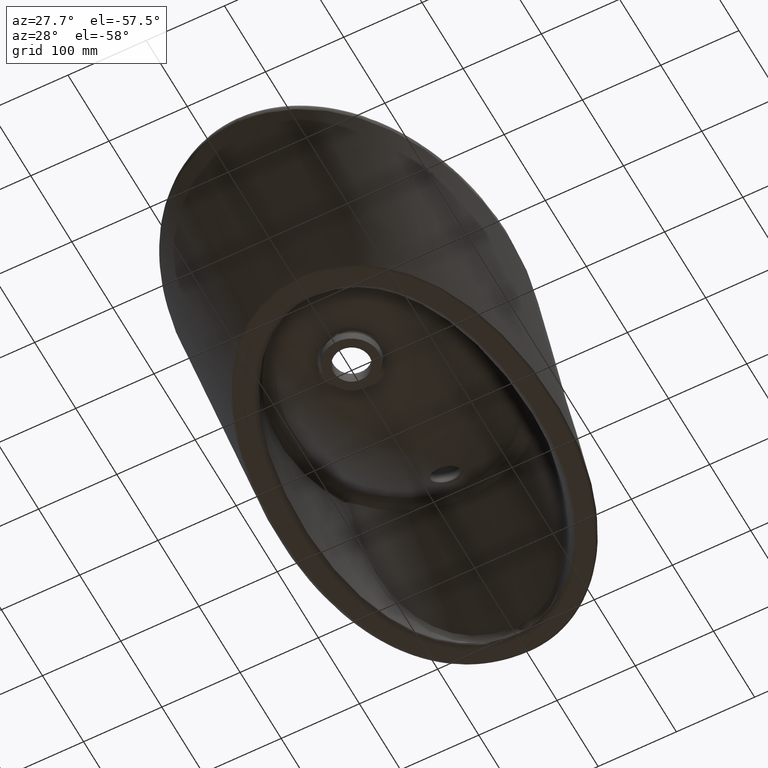
[diagram: clean part render]
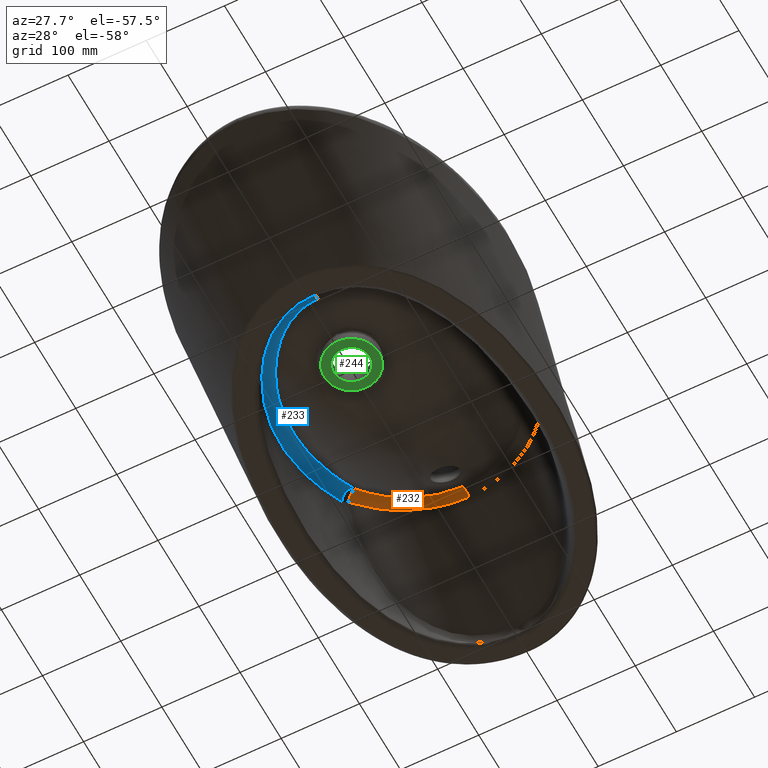
[diagram: same view with three faces highlighted in distinct colors, each labeled with its STEP entity id]
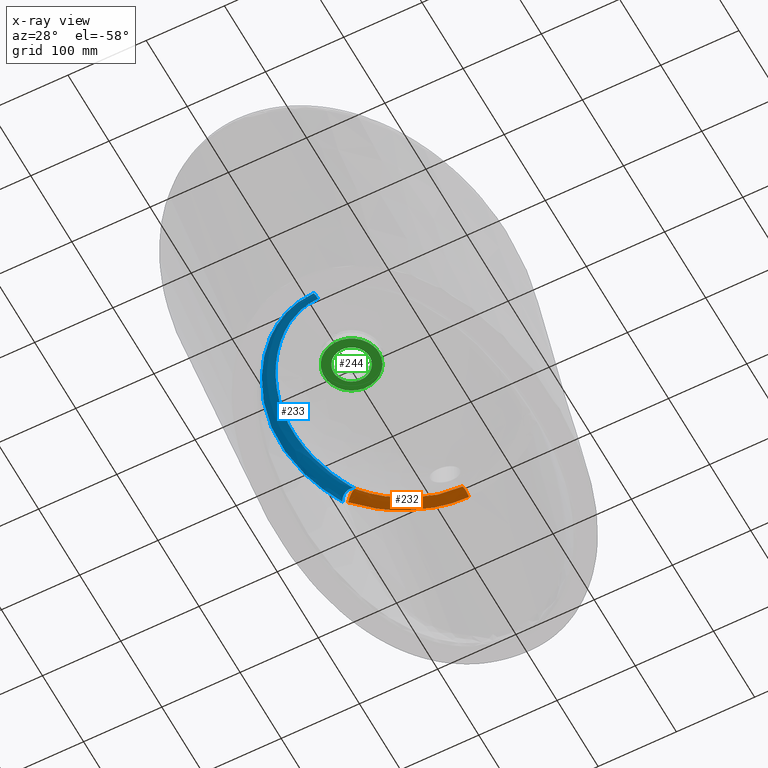
[diagram: x-ray of the same camera — body ghosted, the three highlighted faces saturated]
A machine part, auxiliary view with three faces highlighted in distinct colors.
The next image is the same camera in x-ray (body ghosted, the three faces saturated) — at least one of them is partly hidden behind the body in this view.
Their STEP definitions:

[orange] entity #232 — the highlighted face is a freeform B-spline surface patch.
#130=(
BOUNDED_SURFACE()
B_SPLINE_SURFACE(3,2,((#15686,#15687,#15688),(#15689,#15690,#15691),(#15692,
#15693,#15694),(#15695,#15696,#15697),(#15698,#15699,#15700),(#15701,#15702,
#15703),(#15704,#15705,#15706),(#15707,#15708,#15709),(#15710,#15711,#15712),
(#15713,#15714,#15715),(#15716,#15717,#15718),(#15719,#15720,#15721),(#15722,
#15723,#15724),(#15725,#15726,#15727),(#15728,#15729,#15730),(#15731,#15732,
#15733)),.UNSPECIFIED.,.F.,.F.,.F.)
B_SPLINE_SURFACE_WITH_KNOTS((4,2,2,2,2,2,2,4),(3,3),(0.,0.25,0.375,0.4375,
0.5,0.625,0.75,1.),(0.,1.),.UNSPECIFIED.)
GEOMETRIC_REPRESENTATION_ITEM()
RATIONAL_B_SPLINE_SURFACE(((1.,0.632108000459899,1.),(1.,0.659570025203263,
1.),(1.,0.679124628611072,1.),(1.,0.704777845493947,1.),(1.,0.712342504019266,
1.),(1.,0.721900788243359,1.),(1.,0.724736636659717,1.),(1.,0.730015489518685,
1.),(1.,0.73199991033058,1.),(1.,0.738446627321426,1.),(1.,0.742392668552308,
1.),(1.,0.749683936567246,1.),(1.,0.753047126587379,1.),(1.,0.761457696404205,
1.),(1.,0.764394044295747,1.),(1.,0.764326696199745,1.)))
REPRESENTATION_ITEM('')
SURFACE()
);
#167=FACE_OUTER_BOUND('',#412,.T.);
#232=ADVANCED_FACE('',(#167),#130,.T.);
#258=B_SPLINE_CURVE_WITH_KNOTS('',3,(#1029,#1030,#1031,#1032,#1033,#1034,
#1035,#1036,#1037,#1038,#1039,#1040,#1041,#1042),.UNSPECIFIED.,.F.,.F.,
(4,2,2,2,2,2,4),(0.,0.25,0.375,0.5,0.625,0.75,1.),.UNSPECIFIED.);
#325=B_SPLINE_CURVE_WITH_KNOTS('',3,(#15440,#15441,#15442,#15443,#15444,
#15445),.UNSPECIFIED.,.F.,.F.,(4,2,4),(0.,0.5,1.),.UNSPECIFIED.);
#329=B_SPLINE_CURVE_WITH_KNOTS('',3,(#15674,#15675,#15676,#15677,#15678,
#15679,#15680,#15681,#15682,#15683,#15684,#15685),.UNSPECIFIED.,.F.,.F.,
(4,2,2,2,2,4),(0.,0.25,0.5,0.625,0.75,1.),.UNSPECIFIED.);
#412=EDGE_LOOP('',(#593,#594,#595,#596));
#593=ORIENTED_EDGE('',*,*,#802,.F.);
#594=ORIENTED_EDGE('',*,*,#803,.T.);
#595=ORIENTED_EDGE('',*,*,#798,.T.);
#596=ORIENTED_EDGE('',*,*,#721,.T.);
#655=VERTEX_POINT('',#1028);
#656=VERTEX_POINT('',#1043);
#703=VERTEX_POINT('',#15446);
#705=VERTEX_POINT('',#15673);
#721=EDGE_CURVE('',#656,#655,#258,.T.);
#798=EDGE_CURVE('',#703,#656,#325,.T.);
#802=EDGE_CURVE('',#705,#655,#826,.T.);
#803=EDGE_CURVE('',#705,#703,#329,.T.);
#826=CIRCLE('',#840,12.);
#840=AXIS2_PLACEMENT_3D('',#15672,#868,#869);
#868=DIRECTION('',(0.612077976154444,0.78804588845686,0.0659107638623509));
#869=DIRECTION('',(-0.789763211639891,0.613411827029969,0.));
#1028=CARTESIAN_POINT('',(-107.872652164447,213.62074575705,-26.0022653136002));
#1029=CARTESIAN_POINT('',(0.0222439527298453,270.225549376138,-21.3829240495747));
#1030=CARTESIAN_POINT('',(-10.6169274203218,270.231663222172,-21.3812237869257));
#1031=CARTESIAN_POINT('',(-21.039263561307,268.855661459794,-21.4797032845562));
#1032=CARTESIAN_POINT('',(-36.3691336773354,264.855769425907,-21.760345822033));
#1033=CARTESIAN_POINT('',(-41.4406911432629,263.192729117764,-21.8743572093796));
#1034=CARTESIAN_POINT('',(-51.2500854681648,259.335093724407,-22.1250350341253));
#1035=CARTESIAN_POINT('',(-56.0200412388704,257.136178541844,-22.2606147162524));
#1036=CARTESIAN_POINT('',(-65.3065909823002,252.23109687058,-22.5607285466861));
#1037=CARTESIAN_POINT('',(-69.8265349442924,249.531416179558,-22.7214653290313));
#1038=CARTESIAN_POINT('',(-78.5706855533921,243.544818568722,-23.1516840977122));
#1039=CARTESIAN_POINT('',(-82.7531101116181,240.288781811586,-23.4131386024939));
#1040=CARTESIAN_POINT('',(-94.5833717362743,229.910224191695,-24.3064493595088));
#1041=CARTESIAN_POINT('',(-101.624899024767,222.151152645288,-25.0104333944749));
#1042=CARTESIAN_POINT('',(-107.872652164448,213.62074575705,-26.0022653136002));
#1043=CARTESIAN_POINT('',(0.022243952718731,270.225549481322,-21.3829239660952));
#15440=CARTESIAN_POINT('',(0.0300752905156483,285.694511976307,-21.8462196199252));
#15441=CARTESIAN_POINT('',(0.0292141058203263,283.607025357882,-19.9753041560166));
#15442=CARTESIAN_POINT('',(0.0279275685491558,280.846636001501,-18.8716779528196));
#15443=CARTESIAN_POINT('',(0.0250922962987838,275.242751090998,-18.7038415491721));
#15444=CARTESIAN_POINT('',(0.0235546952321066,272.421261594452,-19.6402904303447));
#15445=CARTESIAN_POINT('',(0.0222488056554749,270.225549373348,-21.3829240503513));
#15446=CARTESIAN_POINT('',(0.0300752906413561,285.694511007152,-21.8462179021919));
#15672=CARTESIAN_POINT('',(-114.166707865972,219.223913980683,-34.5456468855407));
#15673=CARTESIAN_POINT('',(-122.388172659701,225.065706452453,-28.0432644481386));
#15674=CARTESIAN_POINT('',(-122.388172659701,225.065706452453,-28.0432644481384));
#15675=CARTESIAN_POINT('',(-114.961655970901,234.236186104954,-26.8921776622449));
#15676=CARTESIAN_POINT('',(-106.778175792552,242.60286670883,-25.8874110990387));
#15677=CARTESIAN_POINT('',(-88.6232888937811,257.43754669531,-24.2223637610886));
#15678=CARTESIAN_POINT('',(-78.570592432863,263.900289120305,-23.592941861498));
#15679=CARTESIAN_POINT('',(-62.8414135986254,271.813529151613,-22.9284916042046));
#15680=CARTESIAN_POINT('',(-57.4634116858846,274.168867243616,-22.7395626434814));
#15681=CARTESIAN_POINT('',(-46.4219783349738,278.280532126651,-22.4113534248638));
#15682=CARTESIAN_POINT('',(-40.725471519553,280.040547347075,-22.2721852429911));
#15683=CARTESIAN_POINT('',(-23.5248271508842,284.258542682856,-21.94751876746));
#15684=CARTESIAN_POINT('',(-11.8546249266026,285.700545634653,-21.8449227792393));
#15685=CARTESIAN_POINT('',(0.030069839282626,285.694511979074,-21.8462196193304));
#15686=CARTESIAN_POINT('',(-122.388172659701,225.065706452453,-28.0432644481385));
#15687=CARTESIAN_POINT('',(-116.578619172582,219.52252236872,-15.7177558698336));
#15688=CARTESIAN_POINT('',(-107.872652164447,213.620745757049,-26.0022653136004));
#15689=CARTESIAN_POINT('',(-114.996529107458,234.19312373669,-26.8975828881075));
#15690=CARTESIAN_POINT('',(-109.77785548476,228.113260162017,-15.7897922509054));
#15691=CARTESIAN_POINT('',(-101.569032428024,222.227430439524,-25.0015645595247));
#15692=CARTESIAN_POINT('',(-106.79796469546,242.589443057257,-25.888807963904));
#15693=CARTESIAN_POINT('',(-101.808946503465,236.395414572252,-15.6361675032329));
#15694=CARTESIAN_POINT('',(-94.4835981021425,230.013558049642,-24.2968875317487));
#15695=CARTESIAN_POINT('',(-93.1187308299236,253.762863242153,-24.6348660448455));
#15696=CARTESIAN_POINT('',(-88.5878343101325,247.300886275031,-15.4831803034667));
#15697=CARTESIAN_POINT('',(-82.6285069746566,240.390017178167,-23.4047662288824));
#15698=CARTESIAN_POINT('',(-88.3077217731123,257.264626964378,-24.2586400888252));
#15699=CARTESIAN_POINT('',(-83.9908469296776,250.688179553992,-15.429240072904));
#15700=CARTESIAN_POINT('',(-78.4400120910733,243.642287566065,-23.1441453016033));
#15701=CARTESIAN_POINT('',(-80.8189629373634,262.090295250521,-23.777790701517));
#15702=CARTESIAN_POINT('',(-76.8132335237364,255.352447837304,-15.3577278853832));
#15703=CARTESIAN_POINT('',(-71.8714904286453,248.12716320421,-22.8226600379082));
#15704=CARTESIAN_POINT('',(-78.2925812824443,263.621859811891,-23.6323816580623));
#15705=CARTESIAN_POINT('',(-74.4008170451374,256.827395026552,-15.3338450782102));
#15706=CARTESIAN_POINT('',(-69.6450543694119,249.551785436078,-22.7261653079168));
#15707=CARTESIAN_POINT('',(-73.163225777202,266.536133630654,-23.3663413038512));
#15708=CARTESIAN_POINT('',(-69.5046513426033,259.629241872997,-15.295359250694));
#15709=CARTESIAN_POINT('',(-65.1195909077659,252.260707743258,-22.5559406395196));
#15710=CARTESIAN_POINT('',(-70.6003629434172,267.912206165987,-23.2560488995424));
#15711=CARTESIAN_POINT('',(-67.05757871284,260.952938198769,-15.2698165872226));
#15712=CARTESIAN_POINT('',(-62.8229909900123,253.546585727158,-22.4802560847766));
#15713=CARTESIAN_POINT('',(-62.7612821222814,271.849420049147,-22.9255287712128));
#15714=CARTESIAN_POINT('',(-59.6083593288428,264.728663928482,-15.210312471736));
#15715=CARTESIAN_POINT('',(-55.8494765702848,257.218522356587,-22.25554539596));
#15716=CARTESIAN_POINT('',(-57.40287751352,274.193349121421,-22.7376010185193));
#15717=CARTESIAN_POINT('',(-54.5079618906572,266.991870139327,-15.1809715362109));
#15718=CARTESIAN_POINT('',(-51.0805745959134,259.408752747867,-22.1203894397398));
#15719=CARTESIAN_POINT('',(-46.3914084616457,278.289959918226,-22.4106083084823));
#15720=CARTESIAN_POINT('',(-44.0484668881272,270.948111051093,-15.1355760091111));
#15721=CARTESIAN_POINT('',(-41.287847413603,263.245604817318,-21.8707755757864));
#15722=CARTESIAN_POINT('',(-40.6992312999336,280.047801816366,-22.2716212087797));
#15723=CARTESIAN_POINT('',(-38.6401386311073,272.65658661164,-15.1204080637418));
#15724=CARTESIAN_POINT('',(-36.2284941660616,264.897819517749,-21.7574507417001));
#15725=CARTESIAN_POINT('',(-23.518031507148,284.258565359396,-21.9475283413349));
#15726=CARTESIAN_POINT('',(-22.3956289130905,276.735009840589,-15.0954624603949));
#15727=CARTESIAN_POINT('',(-20.9464538614362,268.868970003458,-21.4786569469036));
#15728=CARTESIAN_POINT('',(-11.8542725081941,285.700545905698,-21.8449227868036));
#15729=CARTESIAN_POINT('',(-11.2507190124864,278.161752397447,-15.0886275050769));
#15730=CARTESIAN_POINT('',(-10.5647926476819,270.231633684823,-21.3812320898338));
#15731=CARTESIAN_POINT('',(0.0300752905156523,285.694511976306,-21.8462196199255));
#15732=CARTESIAN_POINT('',(0.026965083788089,278.1554614572,-15.08932543201));
#15733=CARTESIAN_POINT('',(0.0222488056554707,270.225549373347,-21.3829240503514));

[blue] entity #233 — the highlighted face is a freeform B-spline surface patch.
#131=(
BOUNDED_SURFACE()
B_SPLINE_SURFACE(3,2,((#15764,#15765,#15766),(#15767,#15768,#15769),(#15770,
#15771,#15772),(#15773,#15774,#15775),(#15776,#15777,#15778),(#15779,#15780,
#15781),(#15782,#15783,#15784),(#15785,#15786,#15787),(#15788,#15789,#15790),
(#15791,#15792,#15793),(#15794,#15795,#15796),(#15797,#15798,#15799),(#15800,
#15801,#15802),(#15803,#15804,#15805),(#15806,#15807,#15808),(#15809,#15810,
#15811),(#15812,#15813,#15814),(#15815,#15816,#15817),(#15818,#15819,#15820),
(#15821,#15822,#15823),(#15824,#15825,#15826),(#15827,#15828,#15829),(#15830,
#15831,#15832),(#15833,#15834,#15835),(#15836,#15837,#15838),(#15839,#15840,
#15841),(#15842,#15843,#15844),(#15845,#15846,#15847),(#15848,#15849,#15850),
(#15851,#15852,#15853),(#15854,#15855,#15856),(#15857,#15858,#15859),(#15860,
#15861,#15862),(#15863,#15864,#15865),(#15866,#15867,#15868),(#15869,#15870,
#15871),(#15872,#15873,#15874),(#15875,#15876,#15877),(#15878,#15879,#15880),
(#15881,#15882,#15883),(#15884,#15885,#15886),(#15887,#15888,#15889),(#15890,
#15891,#15892),(#15893,#15894,#15895),(#15896,#15897,#15898),(#15899,#15900,
#15901),(#15902,#15903,#15904),(#15905,#15906,#15907),(#15908,#15909,#15910),
(#15911,#15912,#15913),(#15914,#15915,#15916),(#15917,#15918,#15919),(#15920,
#15921,#15922),(#15923,#15924,#15925),(#15926,#15927,#15928),(#15929,#15930,
#15931),(#15932,#15933,#15934),(#15935,#15936,#15937)),.UNSPECIFIED.,.F.,
 .F.,.F.)
B_SPLINE_SURFACE_WITH_KNOTS((4,2,2,2,2,2,2,2,2,2,2,2,2,2,2,2,2,2,2,2,2,
2,2,2,2,2,2,2,4),(3,3),(0.,0.00390624999999999,0.00585937499999999,0.00781249999999999,
0.015625,0.0312499999999999,0.0625,0.0781250000000002,0.0937500000000001,
0.125,0.15625,0.1875,0.25,0.3125,0.375,0.4375,0.5,0.53125,0.5625,0.625,
0.6875,0.75,0.8125,0.875,0.9375,0.953125,0.96875,0.984375,1.),(0.,1.),
 .UNSPECIFIED.)
GEOMETRIC_REPRESENTATION_ITEM()
RATIONAL_B_SPLINE_SURFACE(((1.,0.723778602460632,1.),(1.,0.723790741405384,
1.),(1.,0.723800855261237,1.),(1.,0.72381296362015,1.),(1.,0.723816489381027,
1.),(1.,0.723822517020075,1.),(1.,0.723825123205522,1.),(1.,0.723830158760382,
1.),(1.,0.723813990805947,1.),(1.,0.723706934100386,1.),(1.,0.723557724804566,
1.),(1.,0.722885713665887,1.),(1.,0.722142813863593,1.),(1.,0.72062772360497,
1.),(1.,0.720054872573773,1.),(1.,0.718804547266178,1.),(1.,0.718124390998416,
1.),(1.,0.715929316699899,1.),(1.,0.714264005110219,1.),(1.,0.71055920948795,
1.),(1.,0.708509105234393,1.),(1.,0.704152006553387,1.),(1.,0.701844826992433,
1.),(1.,0.694629373498694,1.),(1.,0.689419986851209,1.),(1.,0.678477974356739,
1.),(1.,0.672909497588042,1.),(1.,0.661705876967646,1.),(1.,0.656108719366457,
1.),(1.,0.644532424285867,1.),(1.,0.638513778407778,1.),(1.,0.626058878480861,
1.),(1.,0.619719941333079,1.),(1.,0.609944119421014,1.),(1.,0.606743106272689,
1.),(1.,0.600875716387885,1.),(1.,0.598349412148452,1.),(1.,0.588704383464508,
1.),(1.,0.581231084938978,1.),(1.,0.567794811183454,1.),(1.,0.561851623208915,
1.),(1.,0.550283971219169,1.),(1.,0.544752579720364,1.),(1.,0.53561721394183,
1.),(1.,0.531801355499812,1.),(1.,0.526513782146173,1.),(1.,0.525027295510255,
1.),(1.,0.522279221661026,1.),(1.,0.52102619289782,1.),(1.,0.521061962825565,
1.),(1.,0.521180932509486,1.),(1.,0.521614920050757,1.),(1.,0.521773670605635,
1.),(1.,0.523532666807253,1.),(1.,0.525057362861533,1.),(1.,0.529596624166518,
1.),(1.,0.532366721655663,1.),(1.,0.537819666272193,1.)))
REPRESENTATION_ITEM('')
SURFACE()
);
#168=FACE_OUTER_BOUND('',#413,.T.);
#233=ADVANCED_FACE('',(#168),#131,.T.);
#256=B_SPLINE_CURVE_WITH_KNOTS('',3,(#990,#991,#992,#993,#994,#995,#996,
#997,#998,#999,#1000,#1001,#1002,#1003,#1004,#1005,#1006,#1007,#1008,#1009,
#1010,#1011,#1012,#1013,#1014,#1015,#1016,#1017,#1018,#1019),
 .UNSPECIFIED.,.F.,.F.,(4,2,2,2,2,2,2,2,2,2,2,2,2,2,4),(0.,0.03125,0.0625000000000001,
0.125,0.25,0.375,0.4375,0.5,0.5625,0.625,0.75,0.8125,0.875,0.9375,1.),
 .UNSPECIFIED.);
#327=B_SPLINE_CURVE_WITH_KNOTS('',3,(#15509,#15510,#15511,#15512,#15513,
#15514),.UNSPECIFIED.,.F.,.F.,(4,2,4),(0.,0.5,1.),.UNSPECIFIED.);
#330=B_SPLINE_CURVE_WITH_KNOTS('',3,(#15736,#15737,#15738,#15739,#15740,
#15741,#15742,#15743,#15744,#15745,#15746,#15747,#15748,#15749,#15750,#15751,
#15752,#15753,#15754,#15755,#15756,#15757,#15758,#15759,#15760,#15761,#15762,
#15763),.UNSPECIFIED.,.F.,.F.,(4,2,2,2,2,2,2,2,2,2,2,2,2,4),(0.,0.0625000000000001,
0.125,0.1875,0.25,0.3125,0.375,0.4375,0.5,0.625,0.75,0.875,0.9375,1.),
 .UNSPECIFIED.);
#413=EDGE_LOOP('',(#597,#598,#599,#600));
#597=ORIENTED_EDGE('',*,*,#804,.F.);
#598=ORIENTED_EDGE('',*,*,#719,.T.);
#599=ORIENTED_EDGE('',*,*,#800,.T.);
#600=ORIENTED_EDGE('',*,*,#805,.T.);
#652=VERTEX_POINT('',#988);
#654=VERTEX_POINT('',#1020);
#704=VERTEX_POINT('',#15515);
#706=VERTEX_POINT('',#15735);
#719=EDGE_CURVE('',#654,#652,#256,.T.);
#800=EDGE_CURVE('',#652,#704,#327,.T.);
#804=EDGE_CURVE('',#654,#706,#827,.T.);
#805=EDGE_CURVE('',#704,#706,#330,.T.);
#827=CIRCLE('',#841,12.);
#841=AXIS2_PLACEMENT_3D('',#15734,#870,#871);
#870=DIRECTION('',(-0.187902837459455,-0.877587810552512,-0.441057998957432));
#871=DIRECTION('',(0.,0.449056768114076,-0.893503228315904));
#988=CARTESIAN_POINT('',(1.01857972430344,-83.6697806277021,-118.773147645456));
#990=CARTESIAN_POINT('',(-108.564605853435,211.961372586978,-26.5809291669383));
#991=CARTESIAN_POINT('',(-109.012707301749,208.655329660878,-28.4394672172353));
#992=CARTESIAN_POINT('',(-109.598058244992,205.354615611653,-30.2919927263625));
#993=CARTESIAN_POINT('',(-110.737364120918,198.742169579469,-33.9775671208013));
#994=CARTESIAN_POINT('',(-111.316127113265,195.424941669845,-35.795784305206));
#995=CARTESIAN_POINT('',(-112.9116845393,185.455629665853,-41.2307157083483));
#996=CARTESIAN_POINT('',(-113.841199436,178.775022060557,-44.7977670077075));
#997=CARTESIAN_POINT('',(-116.154463389448,158.61519696763,-55.3079031706479));
#998=CARTESIAN_POINT('',(-117.104901240326,145.042639220381,-62.1071445171846));
#999=CARTESIAN_POINT('',(-117.89485602086,117.29950920819,-74.5735143678718));
#1000=CARTESIAN_POINT('',(-117.71410917619,103.100944660998,-80.1836376678426));
#1001=CARTESIAN_POINT('',(-116.225813783274,81.3745809346274,-87.8408316033678));
#1002=CARTESIAN_POINT('',(-115.509215605318,74.0772805713538,-90.2846208406701));
#1003=CARTESIAN_POINT('',(-113.551040814378,59.5831408514706,-94.9586583473719));
#1004=CARTESIAN_POINT('',(-112.26029019593,52.3696237832177,-97.184585017339));
#1005=CARTESIAN_POINT('',(-109.137892873341,37.9419228883839,-101.237456506918));
#1006=CARTESIAN_POINT('',(-107.269481545903,30.744225513412,-103.095154034269));
#1007=CARTESIAN_POINT('',(-102.833337340523,16.4037264290389,-106.489894214014));
#1008=CARTESIAN_POINT('',(-100.254124277188,9.24109118471678,-108.029478440763));
#1009=CARTESIAN_POINT('',(-91.5049219550434,-11.6888890674353,-112.104637788331));
#1010=CARTESIAN_POINT('',(-84.3677659751027,-25.0756055902369,-114.115426056805));
#1011=CARTESIAN_POINT('',(-70.7672311353028,-43.7880072448144,-116.235889955561));
#1012=CARTESIAN_POINT('',(-65.7968347631696,-49.7057817981006,-116.785531350977));
#1013=CARTESIAN_POINT('',(-54.9473264145745,-60.5756790058601,-117.639055365389));
#1014=CARTESIAN_POINT('',(-48.9794709103579,-65.5993202159153,-117.949412866083));
#1015=CARTESIAN_POINT('',(-36.0877315911295,-74.1329842378647,-118.405006031113));
#1016=CARTESIAN_POINT('',(-29.237727323543,-77.6381077308077,-118.548677619639));
#1017=CARTESIAN_POINT('',(-14.4195102273172,-82.5344192785614,-118.735887746501));
#1018=CARTESIAN_POINT('',(-6.80188482110594,-83.8013941253009,-118.77555751035));
#1019=CARTESIAN_POINT('',(1.01857912139037,-83.6697447054732,-118.773153502037));
#1020=CARTESIAN_POINT('',(-108.564605853435,211.961372586978,-26.5809291669383));
#15509=CARTESIAN_POINT('',(1.01858032721549,-83.6698165499671,-118.773141789099));
#15510=CARTESIAN_POINT('',(1.06095308840085,-86.6757302556851,-118.283116229729));
#15511=CARTESIAN_POINT('',(1.10669291375641,-89.8602973464292,-118.992482286267));
#15512=CARTESIAN_POINT('',(1.17652211759044,-94.8879658777212,-122.431574922165));
#15513=CARTESIAN_POINT('',(1.20014702524099,-96.7036649582837,-125.142555981268));
#15514=CARTESIAN_POINT('',(1.20425680648198,-97.3369622264492,-128.121872024909));
#15515=CARTESIAN_POINT('',(1.20467805491561,-97.3369580138252,-128.121884595471));
#15734=CARTESIAN_POINT('',(-114.971721265544,217.579510126542,-35.0299174307761));
#15735=CARTESIAN_POINT('',(-126.643259699182,218.824610859343,-32.5349395236013));
#15736=CARTESIAN_POINT('',(1.20509930280612,-97.3369537954664,-128.121897120306));
#15737=CARTESIAN_POINT('',(-7.26324314439403,-97.4757889495281,-128.124094909857));
#15738=CARTESIAN_POINT('',(-15.5324467001328,-96.2859994375467,-128.087738302008));
#15739=CARTESIAN_POINT('',(-31.7247195280556,-91.5983284343528,-127.912985036426));
#15740=CARTESIAN_POINT('',(-39.3915962502381,-88.1448570033016,-127.778210632714));
#15741=CARTESIAN_POINT('',(-53.7869834896,-79.6656724071508,-127.352295059695));
#15742=CARTESIAN_POINT('',(-60.5832882049002,-74.5737067719624,-127.059581283991));
#15743=CARTESIAN_POINT('',(-72.9923527731953,-63.4398194764313,-126.252998045559));
#15744=CARTESIAN_POINT('',(-78.6859164149197,-57.3606775315907,-125.735032265353));
#15745=CARTESIAN_POINT('',(-89.2270199556093,-44.365002584745,-124.380636764282));
#15746=CARTESIAN_POINT('',(-94.0029710737482,-37.5136181484954,-123.549725637401));
#15747=CARTESIAN_POINT('',(-102.613563567519,-23.448147324016,-121.552878920075));
#15748=CARTESIAN_POINT('',(-106.477128247364,-16.2025669802795,-120.382268378509));
#15749=CARTESIAN_POINT('',(-113.456333727325,-1.36374230700856,-117.671675768416));
#15750=CARTESIAN_POINT('',(-116.576792533909,6.26308589531166,-116.127874514701));
#15751=CARTESIAN_POINT('',(-122.063431909816,21.6959065626558,-112.670870676433));
#15752=CARTESIAN_POINT('',(-124.414601750103,29.4522579512874,-110.769848116416));
#15753=CARTESIAN_POINT('',(-130.424983772781,52.8039865138953,-104.524839132969));
#15754=CARTESIAN_POINT('',(-133.024061072264,68.4844625929186,-99.5767600243136));
#15755=CARTESIAN_POINT('',(-136.157008383251,99.9776090320789,-88.7289781437527));
#15756=CARTESIAN_POINT('',(-136.722559402762,115.418262642287,-82.7623185244595));
#15757=CARTESIAN_POINT('',(-136.391602962633,145.629170818291,-69.5469751933509));
#15758=CARTESIAN_POINT('',(-135.463945681931,160.432175914279,-62.3739065985186));
#15759=CARTESIAN_POINT('',(-132.994496490148,182.444687679205,-51.3306002710029));
#15760=CARTESIAN_POINT('',(-131.986860859299,189.742406168254,-47.5857858547261));
#15761=CARTESIAN_POINT('',(-129.590982636353,204.280824157205,-40.0195582072097));
#15762=CARTESIAN_POINT('',(-128.191934963638,211.483400799495,-36.116084198058));
#15763=CARTESIAN_POINT('',(-126.643259699182,218.824610859343,-32.5349395236011));
#15764=CARTESIAN_POINT('',(3.56845439385966,-97.2965541233766,-128.113506198838));
#15765=CARTESIAN_POINT('',(3.4496666608401,-94.9196224597647,-116.923284261202));
#15766=CARTESIAN_POINT('',(3.26138541515889,-83.629957421788,-118.765292723545));
#15767=CARTESIAN_POINT('',(3.06176874994907,-97.3055694066662,-128.116969876932));
#15768=CARTESIAN_POINT('',(2.95944551303138,-94.9284285922868,-116.927029567202));
#15769=CARTESIAN_POINT('',(2.77194375397234,-83.6390826442018,-118.768570592984));
#15770=CARTESIAN_POINT('',(2.55492699690999,-97.3143601529968,-128.119365334011));
#15771=CARTESIAN_POINT('',(2.46907048845448,-94.9370035522202,-116.929675609391));
#15772=CARTESIAN_POINT('',(2.28236112789783,-83.6479212890465,-118.770827841114));
#15773=CARTESIAN_POINT('',(1.79442914283662,-97.3272080186405,-128.121349293225));
#15774=CARTESIAN_POINT('',(1.7333251572741,-94.9495168305156,-116.931988166211));
#15775=CARTESIAN_POINT('',(1.54780752568852,-83.6607465825152,-118.772676362685));
#15776=CARTESIAN_POINT('',(1.54089065064271,-97.331434255707,-128.121742365151));
#15777=CARTESIAN_POINT('',(1.48804726363773,-94.9536297074524,-116.932482907558));
#15778=CARTESIAN_POINT('',(1.30292637969184,-83.6649495632726,-118.773036273414));
#15779=CARTESIAN_POINT('',(1.03373500663412,-97.339773608331,-128.121990339338));
#15780=CARTESIAN_POINT('',(0.997436458446815,-94.9617386136986,-116.93291851011));
#15781=CARTESIAN_POINT('',(0.813109472122015,-83.6732107653149,-118.773242039334));
#15782=CARTESIAN_POINT('',(0.707370043373016,-97.3441282461752,-128.121975284249));
#15783=CARTESIAN_POINT('',(0.682678473402629,-94.9659419264063,-116.93299076283));
#15784=CARTESIAN_POINT('',(0.56831895481668,-83.6764812165311,-118.773215715502));
#15785=CARTESIAN_POINT('',(-0.777630506071044,-97.3536057640111,-128.121881701668));
#15786=CARTESIAN_POINT('',(-0.75089613711181,-94.9751339492639,-116.933062531665));
#15787=CARTESIAN_POINT('',(-0.654293957280196,-83.6844639204423,-118.773102306431));
#15788=CARTESIAN_POINT('',(-1.95925242828902,-97.3344133512906,-128.121056018129));
#15789=CARTESIAN_POINT('',(-1.8917387773686,-94.9566139658954,-116.931719440305));
#15790=CARTESIAN_POINT('',(-1.62911755425619,-83.6682227266125,-118.772389588547));
#15791=CARTESIAN_POINT('',(-5.48607328796087,-97.2005211568667,-128.116259741609));
#15792=CARTESIAN_POINT('',(-5.29758619800592,-94.8273051991614,-116.923483347613));
#15793=CARTESIAN_POINT('',(-4.54458138934889,-83.5544958962011,-118.768271112145));
#15794=CARTESIAN_POINT('',(-7.81324749742913,-97.0097446831675,-128.109989647623));
#15795=CARTESIAN_POINT('',(-7.54584992694094,-94.6429345464741,-116.912406051052));
#15796=CARTESIAN_POINT('',(-6.47575420907055,-83.3921885533483,-118.762897855667));
#15797=CARTESIAN_POINT('',(-14.7307456916154,-96.1554247714416,-128.080837894763));
#15798=CARTESIAN_POINT('',(-14.2307328324048,-93.817241681126,-116.861596085614));
#15799=CARTESIAN_POINT('',(-12.2324560288198,-82.6619623222566,-118.737705146058));
#15800=CARTESIAN_POINT('',(-19.2620745188619,-95.2111120060351,-128.047696766904));
#15801=CARTESIAN_POINT('',(-18.6145790540772,-92.9031665671236,-116.804429682272));
#15802=CARTESIAN_POINT('',(-16.0227762967415,-81.8524111218596,-118.708916732545));
#15803=CARTESIAN_POINT('',(-25.9429540486853,-93.2696596018097,-127.975275937478));
#15804=CARTESIAN_POINT('',(-25.0725790759377,-91.0263900222865,-116.683251144451));
#15805=CARTESIAN_POINT('',(-21.6354856821196,-80.17677100988,-118.645887836486));
#15806=CARTESIAN_POINT('',(-28.1485044802168,-92.5338779437672,-127.94736674333));
#15807=CARTESIAN_POINT('',(-27.206893497854,-90.3142269637304,-116.636850946214));
#15808=CARTESIAN_POINT('',(-23.492127328442,-79.5406575766661,-118.621589235696));
#15809=CARTESIAN_POINT('',(-32.4379671993156,-90.9287651045404,-127.884003172438));
#15810=CARTESIAN_POINT('',(-31.3584698865328,-88.7605699649325,-116.533172573708));
#15811=CARTESIAN_POINT('',(-27.1227487290154,-78.1444072938668,-118.566243453389));
#15812=CARTESIAN_POINT('',(-34.5343329088451,-90.0563572986776,-127.848403347257));
#15813=CARTESIAN_POINT('',(-33.3882027416644,-87.9156693134344,-116.475623843393));
#15814=CARTESIAN_POINT('',(-28.9047572107497,-77.3823803607187,-118.535078499458));
#15815=CARTESIAN_POINT('',(-40.6933447514737,-87.2519138379285,-127.728069026456));
#15816=CARTESIAN_POINT('',(-39.3576912749498,-85.1973297887409,-116.284341012887));
#15817=CARTESIAN_POINT('',(-34.1585680486023,-74.9223413541408,-118.429413302821));
#15818=CARTESIAN_POINT('',(-44.626501001749,-85.1345250004629,-127.629719486741));
#15819=CARTESIAN_POINT('',(-43.169244976163,-83.143982078023,-116.132130942126));
#15820=CARTESIAN_POINT('',(-37.5397250704734,-73.0512470096315,-118.342709403073));
#15821=CARTESIAN_POINT('',(-52.207437526078,-80.4766011772273,-127.388628339193));
#15822=CARTESIAN_POINT('',(-50.5140843712288,-78.631792084366,-115.771636261379));
#15823=CARTESIAN_POINT('',(-44.0859757169405,-68.9088436314533,-118.12871911557));
#15824=CARTESIAN_POINT('',(-55.8729826140397,-77.9197137597825,-127.244920959247));
#15825=CARTESIAN_POINT('',(-54.0664205408278,-76.152941329995,-115.561593694831));
#15826=CARTESIAN_POINT('',(-47.2662293679391,-66.6234250976438,-118.000685811129));
#15827=CARTESIAN_POINT('',(-62.8318255771026,-72.5205988976262,-126.906462967303));
#15828=CARTESIAN_POINT('',(-60.805784821637,-70.9267883747862,-115.083009693425));
#15829=CARTESIAN_POINT('',(-53.3239237934187,-61.7742276027602,-117.697832779126));
#15830=CARTESIAN_POINT('',(-66.1306577349238,-69.6789280747986,-126.711879830359));
#15831=CARTESIAN_POINT('',(-63.999145544064,-68.1761450374556,-114.814054793675));
#15832=CARTESIAN_POINT('',(-56.2066306419005,-59.210720427224,-117.523085726676));
#15833=CARTESIAN_POINT('',(-75.5710070087904,-60.8005124356958,-126.035067198149));
#15834=CARTESIAN_POINT('',(-73.1641932297211,-59.5657680923366,-113.903370405296));
#15835=CARTESIAN_POINT('',(-64.4790753755072,-51.1694860560393,-116.912586894988));
#15836=CARTESIAN_POINT('',(-81.269711387323,-54.4150806699961,-125.458156718699));
#15837=CARTESIAN_POINT('',(-78.6679510313819,-53.3927307826111,-113.158070007238));
#15838=CARTESIAN_POINT('',(-69.5054873372889,-45.3420322929592,-116.389111125226));
#15839=CARTESIAN_POINT('',(-91.7291082143792,-40.88841749363,-123.969493033939));
#15840=CARTESIAN_POINT('',(-88.7659693280919,-40.3741543660511,-111.326913716545));
#15841=CARTESIAN_POINT('',(-78.7299364064808,-32.9728432699954,-115.027944402795));
#15842=CARTESIAN_POINT('',(-96.3680976698537,-33.8931665965438,-123.073019352627));
#15843=CARTESIAN_POINT('',(-93.2340760829829,-33.6516012238458,-110.255868392028));
#15844=CARTESIAN_POINT('',(-82.8311039602047,-26.5559375893824,-114.203803415511));
#15845=CARTESIAN_POINT('',(-104.730524876697,-19.5720544598172,-120.938898275974));
#15846=CARTESIAN_POINT('',(-101.30538299205,-19.9118876009332,-107.782451345222));
#15847=CARTESIAN_POINT('',(-90.2429277006095,-13.3566505844296,-112.230336037516));
#15848=CARTESIAN_POINT('',(-108.456487257223,-12.2507009915007,-119.700125621028));
#15849=CARTESIAN_POINT('',(-104.895926817218,-12.8920829800827,-106.374582804337));
#15850=CARTESIAN_POINT('',(-93.5560859870159,-6.57762054315545,-111.079828205886));
#15851=CARTESIAN_POINT('',(-115.161067092398,2.70713283886379,-116.859127316982));
#15852=CARTESIAN_POINT('',(-111.378674622753,1.42787305182756,-103.193315634799));
#15853=CARTESIAN_POINT('',(-99.5022533905498,7.28737284897743,-108.432331538251));
#15854=CARTESIAN_POINT('',(-118.143009099916,10.3772197202766,-115.248695020982));
#15855=CARTESIAN_POINT('',(-114.259263159268,8.76667460233151,-101.40360175831));
#15856=CARTESIAN_POINT('',(-102.139502010874,14.4099986533955,-106.928986914937));
#15857=CARTESIAN_POINT('',(-123.327025904084,25.7537590290192,-111.688850223677));
#15858=CARTESIAN_POINT('',(-119.281584004236,23.4357187707695,-97.4860379620345));
#15859=CARTESIAN_POINT('',(-106.695990775865,28.7026199691817,-103.603180786713));
#15860=CARTESIAN_POINT('',(-125.534431423965,33.461215253568,-109.740801202772));
#15861=CARTESIAN_POINT('',(-121.418181000505,30.778219577876,-95.3539695754927));
#15862=CARTESIAN_POINT('',(-108.623388294367,35.8754310778059,-101.780831829515));
#15863=CARTESIAN_POINT('',(-128.33789538718,45.0426721569196,-106.556776615765));
#15864=CARTESIAN_POINT('',(-124.134799365582,41.7259376875267,-91.9137201845855));
#15865=CARTESIAN_POINT('',(-111.046262107385,46.6627172936667,-98.799111022156));
#15866=CARTESIAN_POINT('',(-129.186828644118,48.9051561285308,-105.451902949652));
#15867=CARTESIAN_POINT('',(-124.964188978021,45.3964055072309,-90.7192781696914));
#15868=CARTESIAN_POINT('',(-111.778568633292,50.2662281548169,-97.7616701684598));
#15869=CARTESIAN_POINT('',(-130.725468241776,56.6321522141732,-103.156929419593));
#15870=CARTESIAN_POINT('',(-126.479302769988,52.7412890362113,-88.2677474774324));
#15871=CARTESIAN_POINT('',(-113.111058040225,57.4760605723716,-95.5977380315629));
#15872=CARTESIAN_POINT('',(-131.414140497621,60.4957617980987,-101.963097286873));
#15873=CARTESIAN_POINT('',(-127.162896467331,56.4080139293925,-87.0147654099467));
#15874=CARTESIAN_POINT('',(-113.712948140682,61.0745558345834,-94.4675463287631));
#15875=CARTESIAN_POINT('',(-133.261709848883,72.0908122374169,-98.2716200919786));
#15876=CARTESIAN_POINT('',(-129.011394695462,67.5529863199834,-83.0112098671824));
#15877=CARTESIAN_POINT('',(-115.278983650388,71.9847871228542,-90.9730533163992));
#15878=CARTESIAN_POINT('',(-134.211839664261,79.8648736642243,-95.6884435899888));
#15879=CARTESIAN_POINT('',(-129.961037848631,75.0297416078224,-80.1664271899925));
#15880=CARTESIAN_POINT('',(-116.043822267515,79.3537295263796,-88.5260527576082));
#15881=CARTESIAN_POINT('',(-135.602171949747,95.2716494745974,-90.3010095849748));
#15882=CARTESIAN_POINT('',(-131.360777220314,89.7454841521592,-74.3582537289536));
#15883=CARTESIAN_POINT('',(-117.121771380138,93.9676145809173,-83.4231535566349));
#15884=CARTESIAN_POINT('',(-136.052397768796,102.858056022883,-87.4951119871898));
#15885=CARTESIAN_POINT('',(-131.804973902354,96.9383204573629,-71.3942177562501));
#15886=CARTESIAN_POINT('',(-117.443591833471,101.196114112824,-80.7639630147991));
#15887=CARTESIAN_POINT('',(-136.578680554902,117.87277451616,-81.5796441168538));
#15888=CARTESIAN_POINT('',(-132.363898231099,111.164619265932,-65.1833417104867));
#15889=CARTESIAN_POINT('',(-117.746101649287,115.478688556225,-75.1476519442301));
#15890=CARTESIAN_POINT('',(-136.644568757323,125.291885020093,-78.4703244467959));
#15891=CARTESIAN_POINT('',(-132.456928407066,118.15364797572,-61.9509196434561));
#15892=CARTESIAN_POINT('',(-117.718761989335,122.532058494283,-72.1914591250805));
#15893=CARTESIAN_POINT('',(-136.413086458794,139.98708896461,-71.9787968180974));
#15894=CARTESIAN_POINT('',(-132.339053489402,132.116788156622,-55.2617719857776));
#15895=CARTESIAN_POINT('',(-117.36900039007,136.518974848242,-65.9615882917505));
#15896=CARTESIAN_POINT('',(-136.115306189889,147.264496356283,-68.5981491208512));
#15897=CARTESIAN_POINT('',(-132.120958696889,139.041110022557,-51.8154166326116));
#15898=CARTESIAN_POINT('',(-117.041314738094,143.450693322246,-62.6939694891633));
#15899=CARTESIAN_POINT('',(-135.171393770952,161.730418822475,-61.6660881510682));
#15900=CARTESIAN_POINT('',(-131.385156183045,153.000529464764,-44.785995372608));
#15901=CARTESIAN_POINT('',(-116.108489120966,157.250001078511,-55.9235840745485));
#15902=CARTESIAN_POINT('',(-134.526779707921,168.921570084754,-58.1212640807129));
#15903=CARTESIAN_POINT('',(-130.865870857221,159.993512700787,-41.2296227606209));
#15904=CARTESIAN_POINT('',(-115.503933150043,164.11925037953,-52.4284297496987));
#15905=CARTESIAN_POINT('',(-132.887358762266,183.244339658814,-50.922156411046));
#15906=CARTESIAN_POINT('',(-129.500532208946,173.962174787995,-34.0014837898408));
#15907=CARTESIAN_POINT('',(-113.971504632167,177.779911563245,-45.3250510726421));
#15908=CARTESIAN_POINT('',(-131.890944143772,190.372028652734,-47.2599280220997));
#15909=CARTESIAN_POINT('',(-128.6570416305,180.898663752176,-30.3400821239594));
#15910=CARTESIAN_POINT('',(-113.042902134045,184.56784371408,-41.7087006331218));
#15911=CARTESIAN_POINT('',(-130.416961147268,199.254790382821,-42.6347246913356));
#15912=CARTESIAN_POINT('',(-127.387481394841,189.670625706154,-25.7425930154528));
#15913=CARTESIAN_POINT('',(-111.699864518468,193.039778303613,-37.097202194224));
#15914=CARTESIAN_POINT('',(-130.110843640497,201.029692785624,-41.7076590356206));
#15915=CARTESIAN_POINT('',(-127.122847547767,191.429238453406,-24.8245569946129));
#15916=CARTESIAN_POINT('',(-111.422637435125,194.734105365486,-36.1700330275762));
#15917=CARTESIAN_POINT('',(-129.475931579713,204.578691517006,-39.8516702292844));
#15918=CARTESIAN_POINT('',(-126.572004537156,194.960070280244,-22.990365692797));
#15919=CARTESIAN_POINT('',(-110.850937173846,198.123492434936,-34.3083781249523));
#15920=CARTESIAN_POINT('',(-129.146999043034,206.352263034725,-38.9220197194806));
#15921=CARTESIAN_POINT('',(-126.286245132068,196.718153594802,-22.071683425224));
#15922=CARTESIAN_POINT('',(-110.553427922765,199.815268906481,-33.3776611892273));
#15923=CARTESIAN_POINT('',(-128.466934674653,209.901359718453,-37.0671133454441));
#15924=CARTESIAN_POINT('',(-125.69150468067,200.335807980558,-20.2688229549536));
#15925=CARTESIAN_POINT('',(-109.964246323624,203.225249311005,-31.4801571967135));
#15926=CARTESIAN_POINT('',(-128.115973803941,211.677342818512,-36.1427878384046));
#15927=CARTESIAN_POINT('',(-125.383876483657,202.182969477208,-19.3874113580368));
#15928=CARTESIAN_POINT('',(-109.671346415298,204.942339636117,-30.5165341727924));
#15929=CARTESIAN_POINT('',(-127.394025271377,215.240090554594,-34.3164449679991));
#15930=CARTESIAN_POINT('',(-124.745195597312,205.983397191823,-17.6812671679225));
#15931=CARTESIAN_POINT('',(-109.09560385551,208.410324252429,-28.5732899091388));
#15932=CARTESIAN_POINT('',(-127.022721422962,217.02584239754,-33.4124038718736));
#15933=CARTESIAN_POINT('',(-124.417869695367,207.904573899378,-16.8580176276804));
#15934=CARTESIAN_POINT('',(-108.80944580312,210.154970517401,-27.5964232350546));
#15935=CARTESIAN_POINT('',(-126.643259699182,218.824610859343,-32.5349395236012));
#15936=CARTESIAN_POINT('',(-124.071847697905,210.020241490233,-16.1120843804291));
#15937=CARTESIAN_POINT('',(-108.564605853435,211.961372586978,-26.5809291669385));

[green] entity #244 — the highlighted face is a freeform B-spline surface patch.
#194=B_SPLINE_SURFACE_WITH_KNOTS('',3,3,((#17545,#17546,#17547,#17548),
(#17549,#17550,#17551,#17552),(#17553,#17554,#17555,#17556),(#17557,#17558,
#17559,#17560)),.UNSPECIFIED.,.F.,.F.,.F.,(4,4),(4,4),(0.,1.),(0.,1.),
 .UNSPECIFIED.);
#244=ADVANCED_FACE('',(#361,#362),#194,.F.);
#309=B_SPLINE_CURVE_WITH_KNOTS('',3,(#14236,#14237,#14238,#14239,#14240,
#14241,#14242,#14243,#14244,#14245,#14246,#14247,#14248,#14249,#14250,#14251,
#14252,#14253,#14254,#14255,#14256,#14257,#14258,#14259,#14260,#14261,#14262,
#14263,#14264,#14265,#14266,#14267,#14268,#14269,#14270,#14271,#14272,#14273,
#14274,#14275,#14276,#14277,#14278,#14279,#14280,#14281,#14282,#14283,#14284),
 .UNSPECIFIED.,.T.,.F.,(1,3,3,3,3,3,3,3,3,3,3,3,3,3,3,3,3,3,1),(-0.0625,
0.,0.0625,0.125,0.1875,0.25,0.3125,0.375,0.4375,0.5,0.5625,0.625,0.6875,
0.75,0.8125,0.875,0.9375,1.,1.0625),.UNSPECIFIED.);
#340=B_SPLINE_CURVE_WITH_KNOTS('',3,(#17101,#17102,#17103,#17104,#17105,
#17106,#17107,#17108,#17109,#17110,#17111,#17112,#17113,#17114,#17115,#17116,
#17117,#17118,#17119,#17120,#17121,#17122,#17123,#17124,#17125,#17126,#17127,
#17128,#17129,#17130,#17131,#17132,#17133,#17134,#17135,#17136,#17137,#17138,
#17139,#17140,#17141,#17142,#17143,#17144,#17145,#17146,#17147,#17148,#17149),
 .UNSPECIFIED.,.T.,.F.,(1,3,3,3,3,3,3,3,3,3,3,3,3,3,3,3,3,3,1),(-0.0625000000000001,
0.,0.0625,0.125,0.1875,0.25,0.3125,0.375,0.4375,0.5,0.5625,0.625,0.6875,
0.75,0.8125,0.875,0.9375,1.,1.0625),.UNSPECIFIED.);
#361=FACE_BOUND('',#427,.T.);
#362=FACE_BOUND('',#428,.T.);
#427=EDGE_LOOP('',(#639));
#428=EDGE_LOOP('',(#640));
#639=ORIENTED_EDGE('',*,*,#815,.F.);
#640=ORIENTED_EDGE('',*,*,#778,.T.);
#690=VERTEX_POINT('',#14285);
#709=VERTEX_POINT('',#17150);
#778=EDGE_CURVE('',#690,#690,#309,.T.);
#815=EDGE_CURVE('',#709,#709,#340,.T.);
#14236=CARTESIAN_POINT('',(23.0000000000015,-7.80625564189563E-015,-140.));
#14237=CARTESIAN_POINT('',(23.0000000000015,3.0497709890468,-140.));
#14238=CARTESIAN_POINT('',(22.416171498614,5.98425253640471,-140.));
#14239=CARTESIAN_POINT('',(21.2492292477611,8.80171894439706,-140.));
#14240=CARTESIAN_POINT('',(20.0822869969083,11.6191853523894,-140.));
#14241=CARTESIAN_POINT('',(18.4197677440863,14.1070258853212,-140.));
#14242=CARTESIAN_POINT('',(16.2634559672921,16.2634559672906,-140.));
#14243=CARTESIAN_POINT('',(14.107144190498,18.41988604926,-140.));
#14244=CARTESIAN_POINT('',(11.6191213261662,20.0821324237133,-140.));
#14245=CARTESIAN_POINT('',(8.80171894439861,21.2492292477596,-140.));
#14246=CARTESIAN_POINT('',(5.98431656263104,22.4163260718059,-140.));
#14247=CARTESIAN_POINT('',(3.04956901392651,22.999916345629,-140.));
#14248=CARTESIAN_POINT('',(1.54650597883332E-012,23.,-140.));
#14249=CARTESIAN_POINT('',(-3.04956901392341,23.000083654371,-140.));
#14250=CARTESIAN_POINT('',(-5.98425253638956,22.4161714986453,-140.));
#14251=CARTESIAN_POINT('',(-8.80171894439552,21.2492292477596,-140.));
#14252=CARTESIAN_POINT('',(-11.6191853524015,20.0822869968739,-140.));
#14253=CARTESIAN_POINT('',(-14.1070258853168,18.4197677440683,-140.));
#14254=CARTESIAN_POINT('',(-16.2634559672891,16.2634559672906,-140.));
#14255=CARTESIAN_POINT('',(-18.4198860492613,14.1071441905129,-140.));
#14256=CARTESIAN_POINT('',(-20.082132423731,11.6191213261414,-140.));
#14257=CARTESIAN_POINT('',(-21.2492292477581,8.80171894439707,-140.));
#14258=CARTESIAN_POINT('',(-22.4163260717851,5.98431656265277,-140.));
#14259=CARTESIAN_POINT('',(-22.9999163456083,3.04956901383002,-140.));
#14260=CARTESIAN_POINT('',(-22.9999999999985,6.07153216591882E-015,-140.));
#14261=CARTESIAN_POINT('',(-23.0000836543887,-3.04956901383001,-140.));
#14262=CARTESIAN_POINT('',(-22.4161714986299,-5.98425253637607,-140.));
#14263=CARTESIAN_POINT('',(-21.2492292477581,-8.80171894439705,-140.));
#14264=CARTESIAN_POINT('',(-20.0822869968862,-11.619185352418,-140.));
#14265=CARTESIAN_POINT('',(-18.4197677441132,-14.1070258853008,-140.));
#14266=CARTESIAN_POINT('',(-16.2634559672891,-16.2634559672906,-140.));
#14267=CARTESIAN_POINT('',(-14.1071441904649,-18.4198860492804,-140.));
#14268=CARTESIAN_POINT('',(-11.6191213261823,-20.0821324237133,-140.));
#14269=CARTESIAN_POINT('',(-8.80171894439553,-21.2492292477596,-140.));
#14270=CARTESIAN_POINT('',(-5.98431656260871,-22.4163260718059,-140.));
#14271=CARTESIAN_POINT('',(-3.04956901386531,-22.9999163456291,-140.));
#14272=CARTESIAN_POINT('',(1.53956708492942E-012,-23.,-140.));
#14273=CARTESIAN_POINT('',(3.04956901386839,-23.000083654371,-140.));
#14274=CARTESIAN_POINT('',(5.98425253636798,-22.4161714986315,-140.));
#14275=CARTESIAN_POINT('',(8.8017189443986,-21.2492292477596,-140.));
#14276=CARTESIAN_POINT('',(11.6191853524292,-20.0822869968877,-140.));
#14277=CARTESIAN_POINT('',(14.1070258853023,-18.4197677441244,-140.));
#14278=CARTESIAN_POINT('',(16.2634559672921,-16.2634559672906,-140.));
#14279=CARTESIAN_POINT('',(18.419886049282,-14.1071441904568,-140.));
#14280=CARTESIAN_POINT('',(20.0820487462675,-11.6193233257295,-140.));
#14281=CARTESIAN_POINT('',(21.2492292477611,-8.80171894439707,-140.));
#14282=CARTESIAN_POINT('',(22.4164097492547,-5.98411456306469,-140.));
#14283=CARTESIAN_POINT('',(23.0000000000015,-3.05020824826567,-140.));
#14284=CARTESIAN_POINT('',(23.0000000000015,-7.80625564189563E-015,-140.));
#14285=CARTESIAN_POINT('',(23.0000000000015,-7.15573433840433E-015,-140.));
#17101=CARTESIAN_POINT('',(35.0038198376277,0.,-140.));
#17102=CARTESIAN_POINT('',(35.0038198376277,4.58198930205028,-140.));
#17103=CARTESIAN_POINT('',(34.0927641008719,9.16217578697037,-140.));
#17104=CARTESIAN_POINT('',(32.3393127077032,13.3953819213203,-140.));
#17105=CARTESIAN_POINT('',(30.5858613145345,17.6285880556702,-140.));
#17106=CARTESIAN_POINT('',(27.9913940814474,21.5114826677551,-140.));
#17107=CARTESIAN_POINT('',(24.7514383746434,24.7514383745591,-140.));
#17108=CARTESIAN_POINT('',(21.5114826678395,27.9913940813631,-140.));
#17109=CARTESIAN_POINT('',(17.6285880557546,30.5858613144501,-140.));
#17110=CARTESIAN_POINT('',(13.3953819214047,32.3393127076189,-140.));
#17111=CARTESIAN_POINT('',(9.16217578705472,34.0927641007876,-140.));
#17112=CARTESIAN_POINT('',(4.58198930213463,35.0038198375433,-140.));
#17113=CARTESIAN_POINT('',(8.43492221892433E-011,35.0038198375433,-140.));
#17114=CARTESIAN_POINT('',(-4.58198930196594,35.0038198375433,-140.));
#17115=CARTESIAN_POINT('',(-9.16217578688602,34.0927641007876,-140.));
#17116=CARTESIAN_POINT('',(-13.395381921236,32.3393127076189,-140.));
#17117=CARTESIAN_POINT('',(-17.6285880555859,30.5858613144501,-140.));
#17118=CARTESIAN_POINT('',(-21.5114826676708,27.9913940813631,-140.));
#17119=CARTESIAN_POINT('',(-24.7514383744747,24.7514383745591,-140.));
#17120=CARTESIAN_POINT('',(-27.9913940812787,21.5114826677551,-140.));
#17121=CARTESIAN_POINT('',(-30.5858613143658,17.6285880556702,-140.));
#17122=CARTESIAN_POINT('',(-32.3393127075345,13.3953819213203,-140.));
#17123=CARTESIAN_POINT('',(-34.0927641007032,9.16217578697038,-140.));
#17124=CARTESIAN_POINT('',(-35.003819837459,4.58198930205029,-140.));
#17125=CARTESIAN_POINT('',(-35.003819837459,4.28673159219781E-015,-140.));
#17126=CARTESIAN_POINT('',(-35.003819837459,-4.58198930205028,-140.));
#17127=CARTESIAN_POINT('',(-34.0927641007032,-9.16217578697037,-140.));
#17128=CARTESIAN_POINT('',(-32.3393127075345,-13.3953819213203,-140.));
#17129=CARTESIAN_POINT('',(-30.5858613143658,-17.6285880556702,-140.));
#17130=CARTESIAN_POINT('',(-27.9913940812787,-21.5114826677551,-140.));
#17131=CARTESIAN_POINT('',(-24.7514383744748,-24.7514383745591,-140.));
#17132=CARTESIAN_POINT('',(-21.5114826676708,-27.9913940813631,-140.));
#17133=CARTESIAN_POINT('',(-17.6285880555859,-30.5858613144501,-140.));
#17134=CARTESIAN_POINT('',(-13.395381921236,-32.3393127076188,-140.));
#17135=CARTESIAN_POINT('',(-9.16217578688604,-34.0927641007876,-140.));
#17136=CARTESIAN_POINT('',(-4.58198930196595,-35.0038198375433,-140.));
#17137=CARTESIAN_POINT('',(8.43406487260589E-011,-35.0038198375433,-140.));
#17138=CARTESIAN_POINT('',(4.58198930213463,-35.0038198375433,-140.));
#17139=CARTESIAN_POINT('',(9.16217578705472,-34.0927641007876,-140.));
#17140=CARTESIAN_POINT('',(13.3953819214047,-32.3393127076188,-140.));
#17141=CARTESIAN_POINT('',(17.6285880557546,-30.5858613144501,-140.));
#17142=CARTESIAN_POINT('',(21.5114826678395,-27.9913940813631,-140.));
#17143=CARTESIAN_POINT('',(24.7514383746434,-24.7514383745591,-140.));
#17144=CARTESIAN_POINT('',(27.9913940814474,-21.5114826677551,-140.));
#17145=CARTESIAN_POINT('',(30.5858613145345,-17.6285880556703,-140.));
#17146=CARTESIAN_POINT('',(32.3393127077032,-13.3953819213203,-140.));
#17147=CARTESIAN_POINT('',(34.0927641008719,-9.16217578697039,-140.));
#17148=CARTESIAN_POINT('',(35.0038198376277,-4.5819893020503,-140.));
#17149=CARTESIAN_POINT('',(35.0038198376277,0.,-140.));
#17150=CARTESIAN_POINT('',(35.0038198376277,0.,-140.));
#17545=CARTESIAN_POINT('',(-35.4238656755095,-35.4238656755939,-140.));
#17546=CARTESIAN_POINT('',(-35.4238656755095,-11.807955225198,-140.));
#17547=CARTESIAN_POINT('',(-35.4238656755095,11.807955225198,-140.));
#17548=CARTESIAN_POINT('',(-35.4238656755095,35.4238656755939,-140.));
#17549=CARTESIAN_POINT('',(-11.8079552251136,-35.4238656755939,-140.));
#17550=CARTESIAN_POINT('',(-11.8079552251136,-11.807955225198,-140.));
#17551=CARTESIAN_POINT('',(-11.8079552251136,11.807955225198,-140.));
#17552=CARTESIAN_POINT('',(-11.8079552251136,35.4238656755939,-140.));
#17553=CARTESIAN_POINT('',(11.8079552252823,-35.4238656755939,-140.));
#17554=CARTESIAN_POINT('',(11.8079552252823,-11.807955225198,-140.));
#17555=CARTESIAN_POINT('',(11.8079552252823,11.807955225198,-140.));
#17556=CARTESIAN_POINT('',(11.8079552252823,35.4238656755939,-140.));
#17557=CARTESIAN_POINT('',(35.4238656756782,-35.4238656755939,-140.));
#17558=CARTESIAN_POINT('',(35.4238656756782,-11.807955225198,-140.));
#17559=CARTESIAN_POINT('',(35.4238656756782,11.807955225198,-140.));
#17560=CARTESIAN_POINT('',(35.4238656756782,35.4238656755939,-140.));